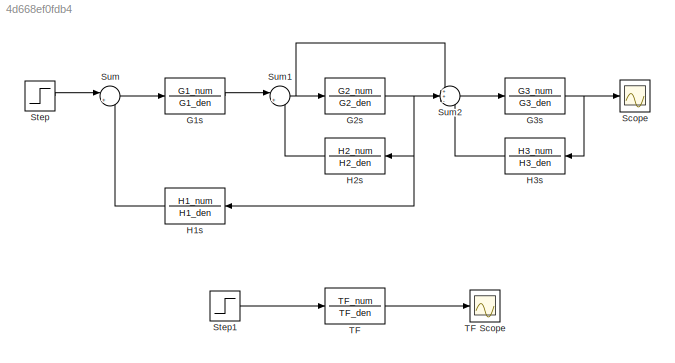
MODEL slx_4d668ef0fdb4
KIND model
CONFIG AbsTol = auto
CONFIG EnableMultiTasking = off
CONFIG FixedStep = auto
CONFIG MaxStep = auto
CONFIG MinStep = auto
CONFIG RelTol = 1e-3
CONFIG SampleTimeConstraint = Unconstrained
CONFIG SolverName = VariableStepAuto
CONFIG StartTime = 0.0
CONFIG StopTime = 20
BLOCK [TransferFcn] G1s
  Denominator = G1_den
  Numerator = G1_num
BLOCK [TransferFcn] G2s
  Denominator = G2_den
  Numerator = G2_num
BLOCK [TransferFcn] G3s
  Denominator = G3_den
  Numerator = G3_num
BLOCK [TransferFcn] H1s
  Denominator = H1_den
  Numerator = H1_num
BLOCK [TransferFcn] H2s
  Denominator = H2_den
  Numerator = H2_num
BLOCK [TransferFcn] H3s
  Denominator = H3_den
  Numerator = H3_num
BLOCK [Scope] Scope
  Floating = off
  NumInputPorts = 1
  ScopeSpecificationString = Simulink.scopes.TimeScopeBlockCfg('CurrentConfiguration', extmgr.ConfigurationSet(extmgr.Configuration('Core','General UI',true),extmgr.Configuration('Core','Source UI',true),extmgr.Configuration('Sources','WiredSimulink',true),extmgr.Configuration('Visuals','Time Domain',true,'SerializedDisplays',{struct('MinYLimReal','-1615826198.51165','MaxYLimReal','179536245.18198','YLabelReal','','MinYLimMag...<+1450ch>
BLOCK [Step] Step
  SampleTime = 0
  Time = 0
BLOCK [Step] Step1
  SampleTime = 0
  Time = 0
BLOCK [Sum] Sum
  Inputs = |+-
BLOCK [Sum] Sum1
  Inputs = |+-
BLOCK [Sum] Sum2
  Inputs = ++-
BLOCK [TransferFcn] TF
  Denominator = TF_den
  Numerator = TF_num
BLOCK [Scope] TF Scope
  Floating = off
  NumInputPorts = 1
  ScopeSpecificationString = Simulink.scopes.TimeScopeBlockCfg('CurrentConfiguration', extmgr.ConfigurationSet(extmgr.Configuration('Core','General UI',true),extmgr.Configuration('Core','Source UI',true),extmgr.Configuration('Sources','WiredSimulink',true,'DataLoggingVariableName','ScopeData1'),extmgr.Configuration('Visuals','Time Domain',true,'SerializedDisplays',{struct('MinYLimReal','-1615826198.51164','MaxYLimReal','17953...<+1488ch>
LINE G1s:1 -> Sum1:1
NET G2s:1 -> H1s:1, H2s:1, Sum2:2
NET G3s:1 -> H3s:1, Scope:1
LINE H1s:1 -> Sum:2
LINE H2s:1 -> Sum1:2
LINE H3s:1 -> Sum2:3
LINE Step1:1 -> TF:1
LINE Step:1 -> Sum:1
NET Sum1:1 -> G2s:1, Sum2:1
LINE Sum2:1 -> G3s:1
LINE Sum:1 -> G1s:1
LINE TF:1 -> TF Scope:1
note: NET lines group one-source signal fan-out (src -> all destinations, sorted); 1:1 wires keep LINE
